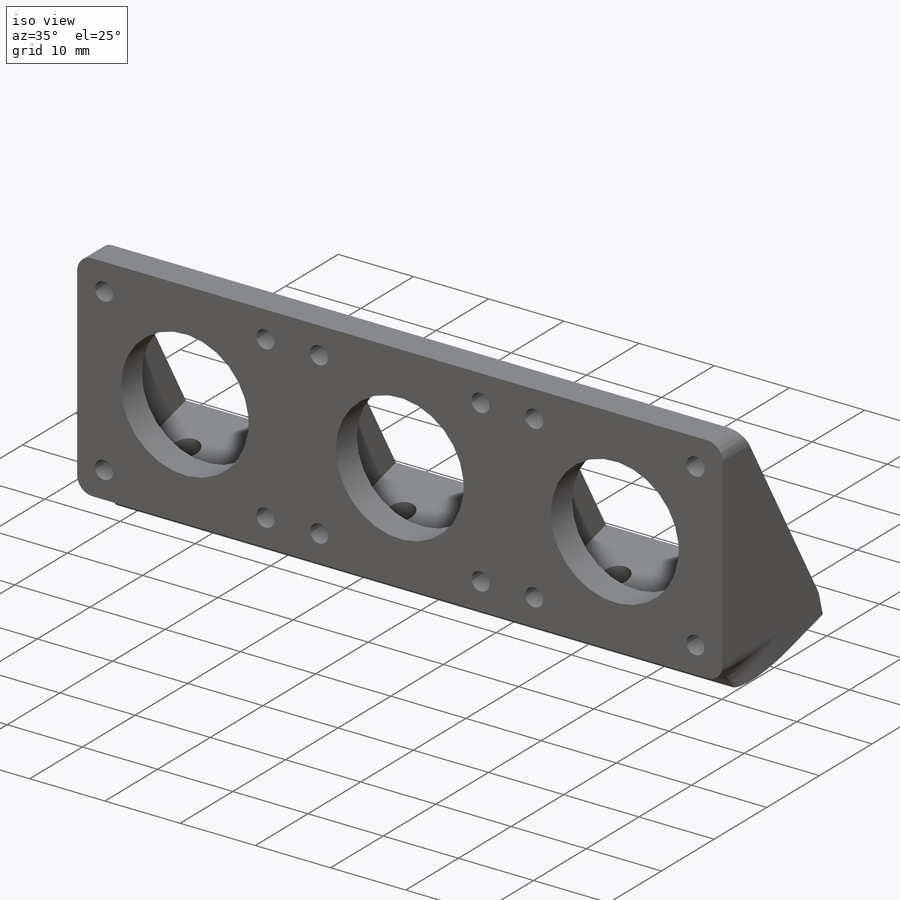
[diagram: iso view]
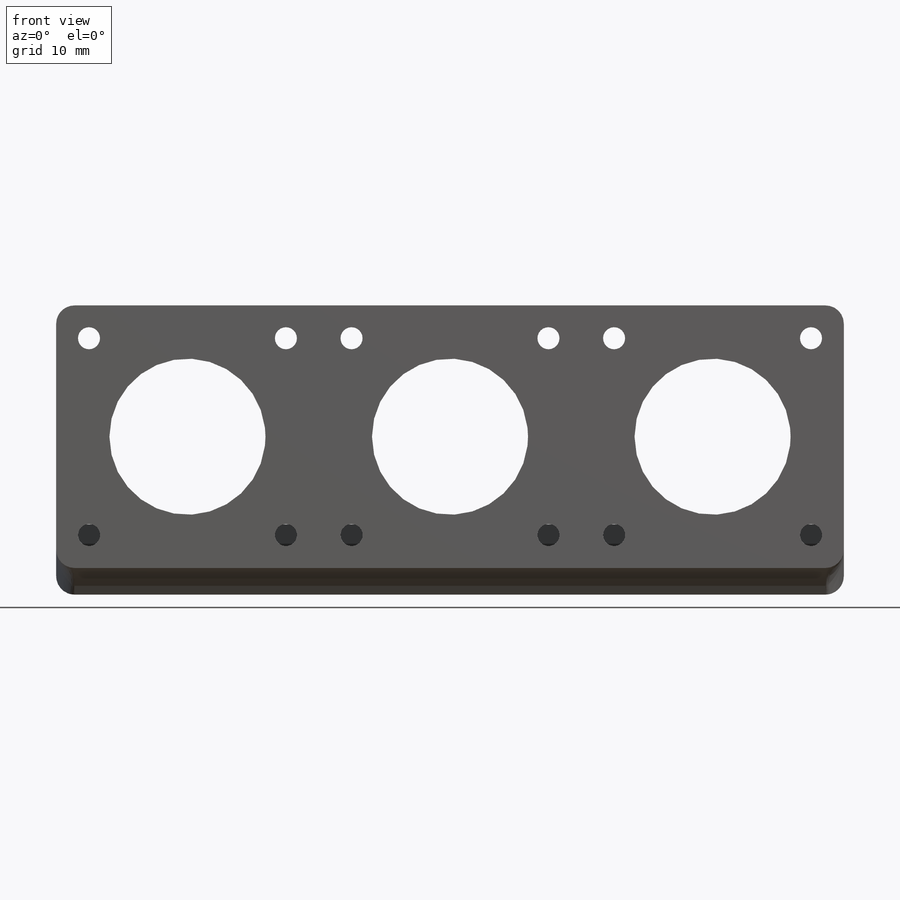
[diagram: front view]
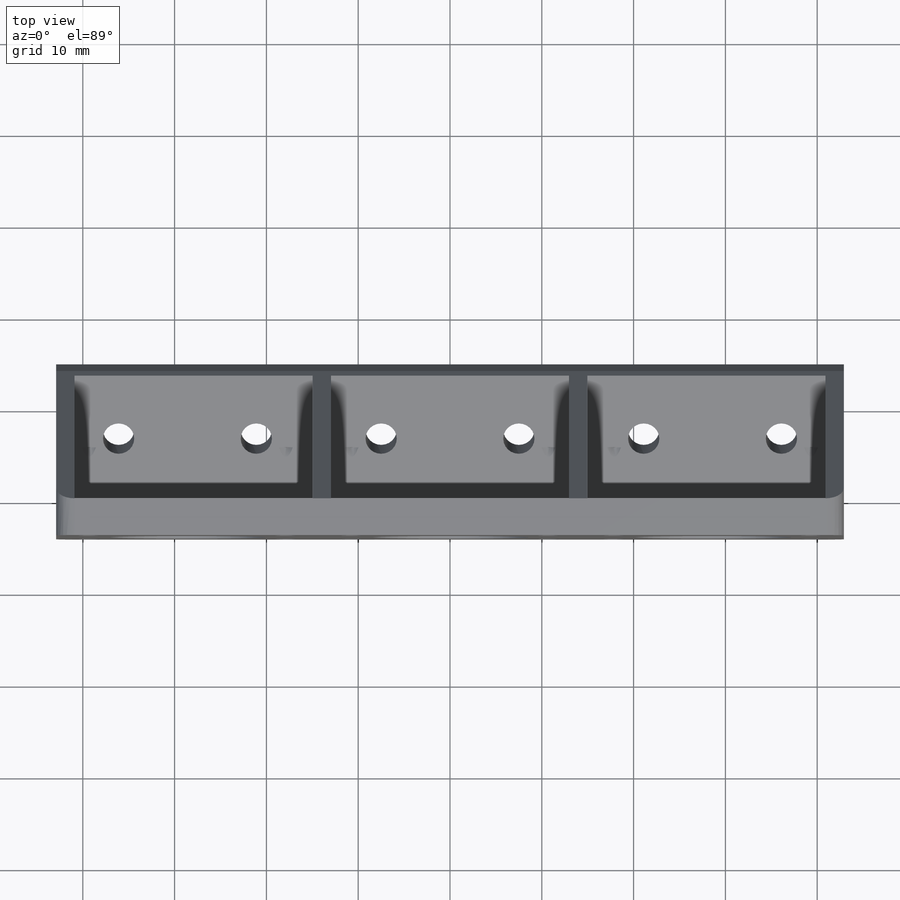
[diagram: top view]
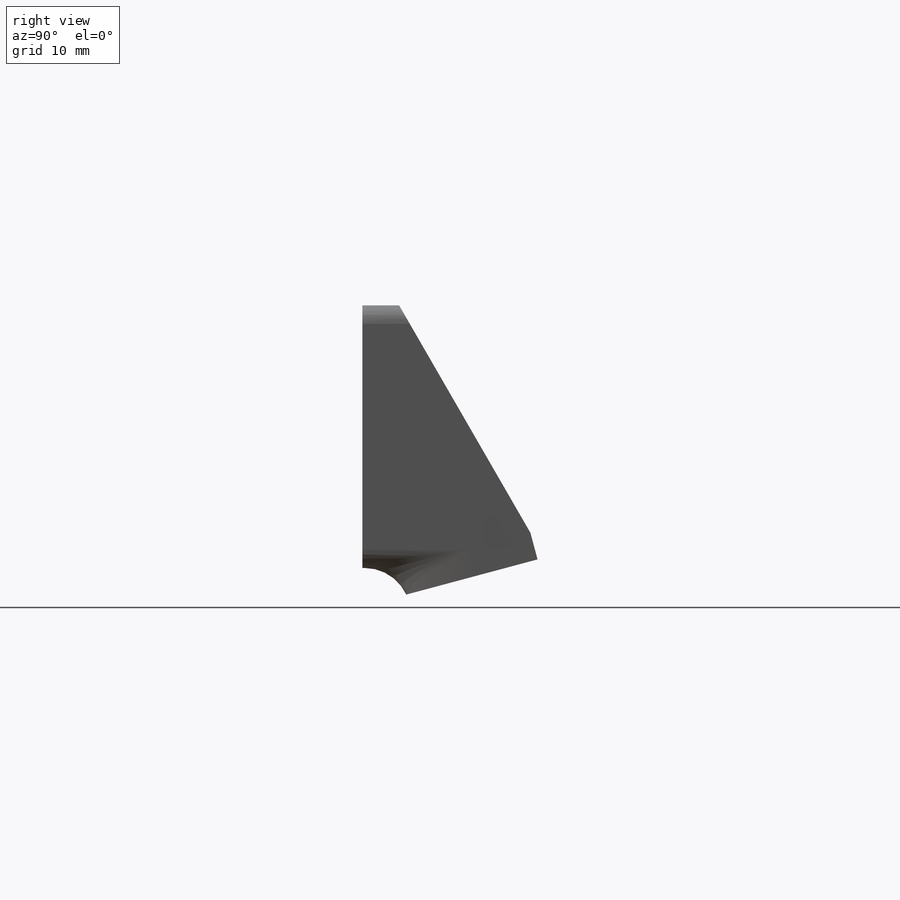
[diagram: right view]
SOLIDWORKS PART (.sldprt)
format: sldprt  version: not decoded by parser v0  size: 378,880 bytes
history: native  units: mm
features: sketch x6, extrude x4, pattern_linear x2, cut_extrude x2, fillet x2, material x1 (+12 scaffold rows collapsed)
feature tree (29):
  scaffold x12  (default folders/planes/origin — collapsed)
  material  "Material <not specified>"
  sketch  "Sketch1"  dims[c1.D3=~19.961484mm c1.D5=17.0mm c1.D6=2.4mm c1.D1=~38.624312mm c1.D2=~157.487895mm c2.D1=28.6mm c2.D2=85.8mm c2.D3=28.6mm c2.D4=28.6mm c2.D7=10.725mm c2.D8=~41.526624mm c3.D8=45.0deg c3.D10=3.0 c3.D9=4.0]
  extrude  "Boss-Extrude1"  Depth=4mm
  sketch  "Sketch2"  dims[c1.D1=~13.26818mm c2.D1=75.0deg c2.D2=28.6mm c3.D2=75.0deg]
  extrude  "Boss-Extrude2"  Depth=2mm
  pattern_linear  "LPattern1"  Count1=4 Count2=1 Spacing1=27.933333mm Spacing2=10mm
  sketch  "Sketch3"  dims[D1=1.0mm]
  extrude  "Boss-Extrude5"  [1 undecoded]
  sketch  "Sketch4"
  cut_extrude  "Cut-Extrude1"  Depth=10mm
  fillet  "Fillet1"  Radius=2mm
  sketch  "Sketch9"  dims[D1=0.0mm]
  extrude  "Boss-Extrude6"  Depth=3mm
  sketch  "Sketch8"  dims[D1=3.4mm D3=5.65mm D2=15.0mm]
  cut_extrude  "Cut-Extrude4"  [1 undecoded]
  pattern_linear  "LPattern2"  Count1=2 Count2=2 Spacing1=28.6mm Spacing2=28.6mm
  fillet  "Fillet2"  Radius=5mm
decode coverage: 13 of 16 modeling features carry decoded parameters
note: ~ marks probable driven/reference dimensions
note: 2 parameter values undecoded
note: suppression state not decoded; provenance and decode notes live in map.json
